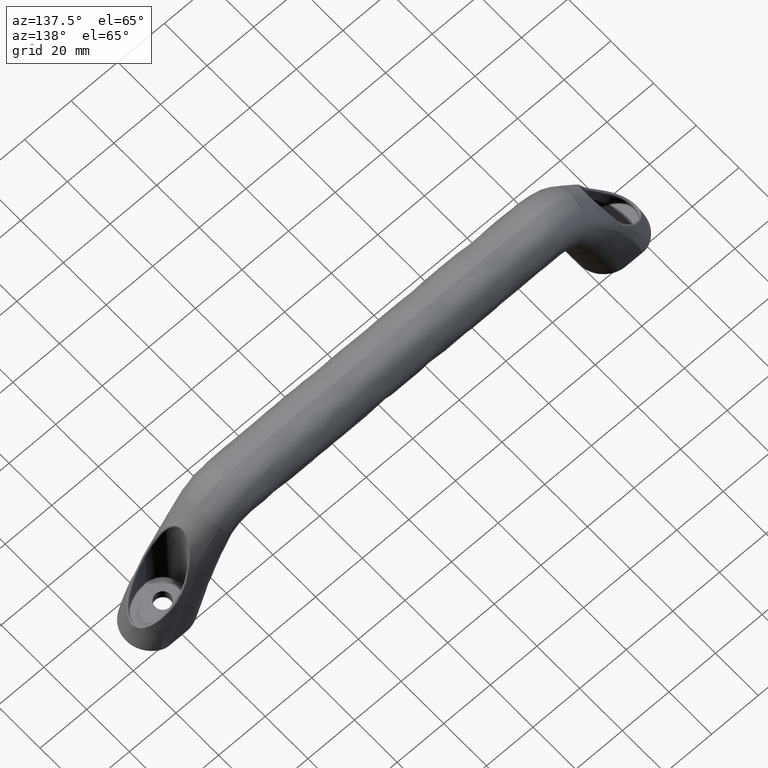
[diagram: clean part render]
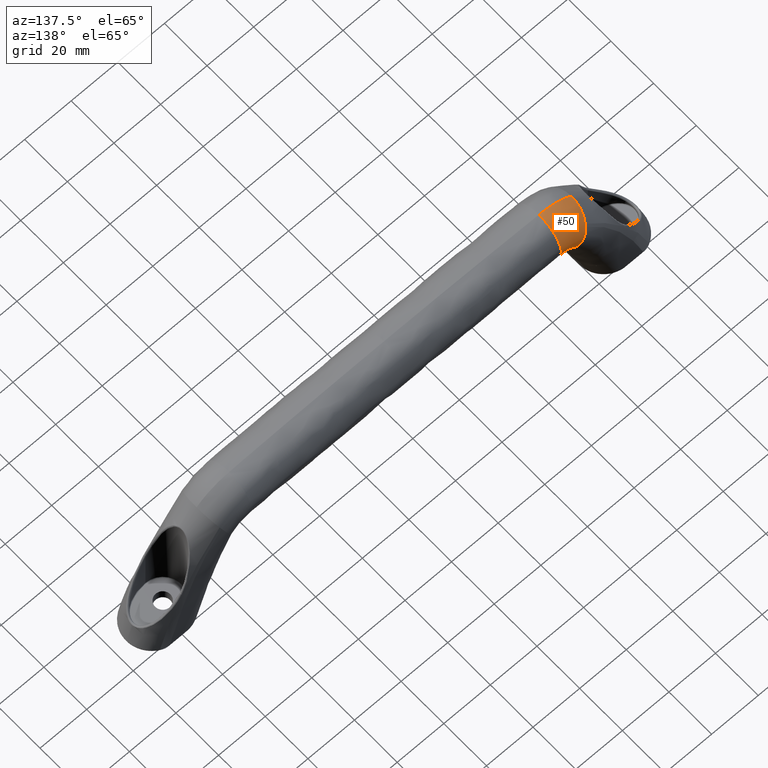
[diagram: same view with one face highlighted and labeled with its STEP entity id]
A machine part, auxiliary view. The second image highlights one B-rep face of the part: STEP entity #50.
In plain terms, the highlighted face is a freeform B-spline surface patch.
Its self-contained STEP definition (entity closure, byte-faithful):
#50=ADVANCED_FACE('',(#191),#190,.T.);
#190=( BOUNDED_SURFACE() B_SPLINE_SURFACE( 3,3,((#1755,#1756,#1757,#1758,#1759,#1760,#1761,#1762,#1763,#1764,#1765,#1766,#1767,#1768,#1769,#1770),(#1771,#1772,#1773,#1774,#1775,#1776,#1777,#1778,#1779,#1780,#1781,#1782,#1783,#1784,#1785,#1786),(#1787,#1788,#1789,#1790,#1791,#1792,#1793,#1794,#1795,#1796,#1797,#1798,#1799,#1800,#1801,#1802),(#1803,#1804,#1805,#1806,#1807,#1808,#1809,#1810,#1811,#1812,#1813,#1814,#1815,#1816,#1817,#1818),(#1819,#1820,#1821,#1822,#1823,#1824,#1825,#1826,#1827,#1828,#1829,#1830,#1831,#1832,#1833,#1834)), .UNSPECIFIED.,.F.,.F.,.F.) B_SPLINE_SURFACE_WITH_KNOTS((4,1,4),(4,1,1,1,1,1,1,1,1,1,1,1,1,4),(0.00000000000E+00,5.00000000000E-01,1.00000000000E+00),(0.00000000000E+00,9.84265294302E-02,1.99907659109E-01,3.01325530409E-01,3.99777060247E-01,4.99893280987E-01,5.99635137018E-01,6.49131936105E-01,6.74208810466E-01,6.99124304367E-01,7.48940443401E-01,8.00182141727E-01,9.01509610726E-01,1.00000000000E+00), .UNSPECIFIED. ) GEOMETRIC_REPRESENTATION_ITEM() RATIONAL_B_SPLINE_SURFACE(((1.00000000000E+00,1.00000000000E+00,1.00000000000E+00,1.00000000000E+00,1.00000000000E+00,1.00000000000E+00,1.00000000000E+00,1.00000000000E+00,1.00000000000E+00,1.00000000000E+00,1.00000000000E+00,1.00000000000E+00,1.00000000000E+00,1.00000000000E+00,1.00000000000E+00,1.00000000000E+00),(1.00000000000E+00,1.00000000000E+00,1.00000000000E+00,1.00000000000E+00,1.00000000000E+00,1.00000000000E+00,1.00000000000E+00,1.00000000000E+00,1.00000000000E+00,1.00000000000E+00,1.00000000000E+00,1.00000000000E+00,1.00000000000E+00,1.00000000000E+00,1.00000000000E+00,1.00000000000E+00),(1.00000000000E+00,1.00000000000E+00,1.00000000000E+00,1.00000000000E+00,1.00000000000E+00,1.00000000000E+00,1.00000000000E+00,1.00000000000E+00,1.00000000000E+00,1.00000000000E+00,1.00000000000E+00,1.00000000000E+00,1.00000000000E+00,1.00000000000E+00,1.00000000000E+00,1.00000000000E+00),(1.00000000000E+00,1.00000000000E+00,1.00000000000E+00,1.00000000000E+00,1.00000000000E+00,1.00000000000E+00,1.00000000000E+00,1.00000000000E+00,1.00000000000E+00,1.00000000000E+00,1.00000000000E+00,1.00000000000E+00,1.00000000000E+00,1.00000000000E+00,1.00000000000E+00,1.00000000000E+00),(1.00000000000E+00,1.00000000000E+00,1.00000000000E+00,1.00000000000E+00,1.00000000000E+00,1.00000000000E+00,1.00000000000E+00,1.00000000000E+00,1.00000000000E+00,1.00000000000E+00,1.00000000000E+00,1.00000000000E+00,1.00000000000E+00,1.00000000000E+00,1.00000000000E+00,1.00000000000E+00))) REPRESENTATION_ITEM('') SURFACE() );
#191=FACE_OUTER_BOUND('',#1835,.T.);
#1755=CARTESIAN_POINT('',(-1.61483175279E+02,3.19999780576E+01,5.89999394433E+01));
#1756=CARTESIAN_POINT('',(-1.61483175279E+02,3.30932367944E+01,5.89999394433E+01));
#1757=CARTESIAN_POINT('',(-1.61483175279E+02,3.52910740797E+01,5.93451684807E+01));
#1758=CARTESIAN_POINT('',(-1.61483175279E+02,3.83070252484E+01,6.08776876629E+01));
#1759=CARTESIAN_POINT('',(-1.61483175279E+02,4.06893599262E+01,6.32931860349E+01));
#1760=CARTESIAN_POINT('',(-1.61483175279E+02,4.21947465193E+01,6.63281107020E+01));
#1761=CARTESIAN_POINT('',(-1.61483175279E+02,4.26788023259E+01,6.96710846465E+01));
#1762=CARTESIAN_POINT('',(-1.61483175279E+02,4.21835576008E+01,7.24550440117E+01));
#1763=CARTESIAN_POINT('',(-1.61483175279E+02,4.13987253139E+01,7.42338356660E+01));
#1764=CARTESIAN_POINT('',(-1.61483175279E+02,4.08424861130E+01,7.51880233629E+01));
#1765=CARTESIAN_POINT('',(-1.61483175279E+02,4.02873957260E+01,7.61470359707E+01));
#1766=CARTESIAN_POINT('',(-1.61483175279E+02,3.94310898699E+01,7.72599607863E+01));
#1767=CARTESIAN_POINT('',(-1.61483175279E+02,3.77857975600E+01,7.87899220920E+01));
#1768=CARTESIAN_POINT('',(-1.61483175279E+02,3.52926025899E+01,8.01285405224E+01));
#1769=CARTESIAN_POINT('',(-1.61483175279E+02,3.30939396539E+01,8.04841122288E+01));
#1770=CARTESIAN_POINT('',(-1.61483175279E+02,3.19999780576E+01,8.04803542570E+01));
#1771=CARTESIAN_POINT('',(-1.62637045696E+02,3.19999780576E+01,5.90039507699E+01));
#1772=CARTESIAN_POINT('',(-1.62637045696E+02,3.30910846704E+01,5.90039507699E+01));
#1773=CARTESIAN_POINT('',(-1.62659326252E+02,3.52921052885E+01,5.93476552473E+01));
#1774=CARTESIAN_POINT('',(-1.62759474107E+02,3.83067453029E+01,6.08736240039E+01));
#1775=CARTESIAN_POINT('',(-1.62920272797E+02,4.06894324426E+01,6.32791869051E+01));
#1776=CARTESIAN_POINT('',(-1.63125733044E+02,4.21947269553E+01,6.63019020419E+01));
#1777=CARTESIAN_POINT('',(-1.63354923432E+02,4.26788076340E+01,6.96315332697E+01));
#1778=CARTESIAN_POINT('',(-1.63547465971E+02,4.21835571524E+01,7.24043904507E+01));
#1779=CARTESIAN_POINT('',(-1.63670998841E+02,4.13987250471E+01,7.41760788161E+01));
#1780=CARTESIAN_POINT('',(-1.63737372458E+02,4.08424866808E+01,7.51264552615E+01));
#1781=CARTESIAN_POINT('',(-1.63804152351E+02,4.02873926151E+01,7.60816292439E+01));
#1782=CARTESIAN_POINT('',(-1.63881750294E+02,3.94311153741E+01,7.71901402750E+01));
#1783=CARTESIAN_POINT('',(-1.63988600137E+02,3.77856615113E+01,7.87139628693E+01));
#1784=CARTESIAN_POINT('',(-1.64082265639E+02,3.52936675776E+01,8.00472083782E+01));
#1785=CARTESIAN_POINT('',(-1.64107152886E+02,3.30917662541E+01,8.04013334311E+01));
#1786=CARTESIAN_POINT('',(-1.64106898394E+02,3.19999780576E+01,8.03976062355E+01));
#1787=CARTESIAN_POINT('',(-1.64938514754E+02,3.19999780576E+01,5.82478185229E+01));
#1788=CARTESIAN_POINT('',(-1.64938514754E+02,3.30865609269E+01,5.82478185229E+01));
#1789=CARTESIAN_POINT('',(-1.65004967528E+02,3.52942728792E+01,5.85867785319E+01));
#1790=CARTESIAN_POINT('',(-1.65303317230E+02,3.83061568603E+01,6.00885497075E+01));
#1791=CARTESIAN_POINT('',(-1.65782098916E+02,4.06895848716E+01,6.24495161742E+01));
#1792=CARTESIAN_POINT('',(-1.66394082864E+02,4.21946858314E+01,6.54101399931E+01));
#1793=CARTESIAN_POINT('',(-1.67077139901E+02,4.26788187937E+01,6.86673572920E+01));
#1794=CARTESIAN_POINT('',(-1.67651265936E+02,4.21835562034E+01,7.13780514402E+01));
#1795=CARTESIAN_POINT('',(-1.68019718071E+02,4.13987244950E+01,7.31095673920E+01));
#1796=CARTESIAN_POINT('',(-1.68217709024E+02,4.08424878587E+01,7.40383011233E+01));
#1797=CARTESIAN_POINT('',(-1.68416921929E+02,4.02873861599E+01,7.49716800847E+01));
#1798=CARTESIAN_POINT('',(-1.68648462911E+02,3.94311682987E+01,7.60547281530E+01));
#1799=CARTESIAN_POINT('',(-1.68967277305E+02,3.77853791911E+01,7.75435568301E+01));
#1800=CARTESIAN_POINT('',(-1.69246784793E+02,3.52958775763E+01,7.88461016296E+01));
#1801=CARTESIAN_POINT('',(-1.69321068337E+02,3.30872561449E+01,7.91919953440E+01));
#1802=CARTESIAN_POINT('',(-1.69320305875E+02,3.19999780576E+01,7.91883848155E+01));
#1803=CARTESIAN_POINT('',(-1.66365727837E+02,3.19999780576E+01,5.62903854236E+01));
#1804=CARTESIAN_POINT('',(-1.66365727837E+02,3.30811431332E+01,5.62903854236E+01));
#1805=CARTESIAN_POINT('',(-1.66482221370E+02,3.52968688618E+01,5.66112120336E+01));
#1806=CARTESIAN_POINT('',(-1.66999179106E+02,3.83054521208E+01,5.80324308811E+01));
#1807=CARTESIAN_POINT('',(-1.67814954312E+02,4.06897674259E+01,6.02655048727E+01));
#1808=CARTESIAN_POINT('',(-1.68843007689E+02,4.21946365799E+01,6.30636939094E+01));
#1809=CARTESIAN_POINT('',(-1.69979372671E+02,4.26788321593E+01,6.61404202442E+01));
#1810=CARTESIAN_POINT('',(-1.70928598959E+02,4.21835550656E+01,6.86999816431E+01));
#1811=CARTESIAN_POINT('',(-1.71536086006E+02,4.13987238357E+01,7.03347184060E+01));
#1812=CARTESIAN_POINT('',(-1.71862171878E+02,4.08424892662E+01,7.12114974448E+01));
#1813=CARTESIAN_POINT('',(-1.72190046551E+02,4.02873784466E+01,7.20926244249E+01));
#1814=CARTESIAN_POINT('',(-1.72570773035E+02,3.94312315391E+01,7.31150567220E+01));
#1815=CARTESIAN_POINT('',(-1.73094497881E+02,3.77850418424E+01,7.45204137851E+01));
#1816=CARTESIAN_POINT('',(-1.73553108253E+02,3.52985183387E+01,7.57498680217E+01));
#1817=CARTESIAN_POINT('',(-1.73674941475E+02,3.30818669440E+01,7.60763558009E+01));
#1818=CARTESIAN_POINT('',(-1.73673676658E+02,3.19999780576E+01,7.60729471170E+01));
#1819=CARTESIAN_POINT('',(-1.66716699438E+02,3.19999780576E+01,5.51911725736E+01));
#1820=CARTESIAN_POINT('',(-1.66716699438E+02,3.30778596558E+01,5.51911725736E+01));
#1821=CARTESIAN_POINT('',(-1.66857318312E+02,3.52984421683E+01,5.54959634992E+01));
#1822=CARTESIAN_POINT('',(-1.67481544836E+02,3.83050250103E+01,5.68489723410E+01));
#1823=CARTESIAN_POINT('',(-1.68465426911E+02,4.06898780636E+01,5.89815333504E+01));
#1824=CARTESIAN_POINT('',(-1.69701614032E+02,4.21946067312E+01,6.16609646796E+01));
#1825=CARTESIAN_POINT('',(-1.71063275946E+02,4.26788402579E+01,6.46123621916E+01));
#1826=CARTESIAN_POINT('',(-1.72197239751E+02,4.21835543812E+01,6.70702248339E+01));
#1827=CARTESIAN_POINT('',(-1.72921778103E+02,4.13987234289E+01,6.86406592175E+01));
#1828=CARTESIAN_POINT('',(-1.73310438349E+02,4.08424901319E+01,6.94830789637E+01));
#1829=CARTESIAN_POINT('',(-1.73701063836E+02,4.02873737032E+01,7.03297583600E+01));
#1830=CARTESIAN_POINT('',(-1.74154381244E+02,3.94312704274E+01,7.13123222816E+01));
#1831=CARTESIAN_POINT('',(-1.74777564292E+02,3.77848343973E+01,7.26630693926E+01));
#1832=CARTESIAN_POINT('',(-1.75322822956E+02,3.53001422157E+01,7.38449156710E+01));
#1833=CARTESIAN_POINT('',(-1.75467622533E+02,3.30785529770E+01,7.41587682545E+01));
#1834=CARTESIAN_POINT('',(-1.75466113363E+02,3.19999780576E+01,7.41554971344E+01));
#1835=EDGE_LOOP('',(#4602,#4603,#4604,#4605,#4606,#4607));
#4602=ORIENTED_EDGE('',*,*,#4813,.T.);
#4603=ORIENTED_EDGE('',*,*,#4814,.T.);
#4604=ORIENTED_EDGE('',*,*,#4815,.T.);
#4605=ORIENTED_EDGE('',*,*,#4784,.F.);
#4606=ORIENTED_EDGE('',*,*,#4816,.T.);
#4607=ORIENTED_EDGE('',*,*,#4817,.T.);
#4784=EDGE_CURVE('',#4924,#4925,#4926,.T.);
#4813=EDGE_CURVE('',#5118,#5119,#5120,.T.);
#4814=EDGE_CURVE('',#5119,#5126,#5127,.T.);
#4815=EDGE_CURVE('',#5126,#4925,#5133,.T.);
#4816=EDGE_CURVE('',#4924,#5139,#5140,.T.);
#4817=EDGE_CURVE('',#5139,#5118,#5146,.T.);
#4924=VERTEX_POINT('',#5738);
#4925=VERTEX_POINT('',#5739);
#4926=CIRCLE('',#5743,4.82991759925E+01);
#5118=VERTEX_POINT('',#6341);
#5119=VERTEX_POINT('',#6342);
#5120=(BOUNDED_CURVE() B_SPLINE_CURVE(2,(#6343,#6344,#6345,#6346,#6347,#6348,#6349,#6350,#6351),.UNSPECIFIED.,.F.,.F.) B_SPLINE_CURVE_WITH_KNOTS((3,2,2,2,3),(-3.65880807057E+01,-2.51853849239E+01,-2.40959586046E+01,-1.20479793023E+01,0.00000000000E+00),.UNSPECIFIED.) CURVE() GEOMETRIC_REPRESENTATION_ITEM() RATIONAL_B_SPLINE_CURVE((1.00000000000E+00,8.68727517694E-01,1.00000000000E+00,9.99940662796E-01,1.00000000000E+00,8.67388181384E-01,1.00000000000E+00,8.67388181384E-01,1.00000000000E+00)) REPRESENTATION_ITEM('') );
#5126=VERTEX_POINT('',#6352);
#5127=(BOUNDED_CURVE() B_SPLINE_CURVE(3,(#6353,#6354,#6355,#6356,#6357,#6358,#6359,#6360,#6361,#6362,#6363,#6364,#6365,#6366,#6367,#6368),.UNSPECIFIED.,.F.,.F.) B_SPLINE_CURVE_WITH_KNOTS((4,2,2,2,2,2,2,4),(0.00000000000E+00,2.16684558461E-01,4.33369116922E-01,8.66738233846E-01,1.73347646769E+00,3.46695293537E+00,5.20042940306E+00,6.93390587073E+00),.UNSPECIFIED.) CURVE() GEOMETRIC_REPRESENTATION_ITEM() RATIONAL_B_SPLINE_CURVE((1.00000000000E+00,1.00000000000E+00,1.00000000000E+00,1.00000000000E+00,1.00000000000E+00,1.00000000000E+00,1.00000000000E+00,1.00000000000E+00,1.00000000000E+00,1.00000000000E+00,1.00000000000E+00,1.00000000000E+00,1.00000000000E+00,1.00000000000E+00,1.00000000000E+00,1.00000000000E+00)) REPRESENTATION_ITEM('') );
#5133=(BOUNDED_CURVE() B_SPLINE_CURVE(2,(#6369,#6370,#6371,#6372,#6373),.UNSPECIFIED.,.F.,.F.) B_SPLINE_CURVE_WITH_KNOTS((3,2,3),(-2.37224876083E+01,-1.17982073668E+01,0.00000000000E+00),.UNSPECIFIED.) CURVE() GEOMETRIC_REPRESENTATION_ITEM() RATIONAL_B_SPLINE_CURVE((1.00000000000E+00,8.67388181384E-01,1.00000000000E+00,8.67388181384E-01,1.00000000000E+00)) REPRESENTATION_ITEM('') );
#5139=VERTEX_POINT('',#6374);
#5140=(BOUNDED_CURVE() B_SPLINE_CURVE(2,(#6375,#6376,#6377),.UNSPECIFIED.,.F.,.F.) B_SPLINE_CURVE_WITH_KNOTS((3,3),(-1.12863690606E+01,0.00000000000E+00),.UNSPECIFIED.) CURVE() GEOMETRIC_REPRESENTATION_ITEM() RATIONAL_B_SPLINE_CURVE((1.00000000000E+00,8.68727517694E-01,1.00000000000E+00)) REPRESENTATION_ITEM('') );
#5146=(BOUNDED_CURVE() B_SPLINE_CURVE(3,(#6378,#6379,#6380,#6381,#6382,#6383,#6384,#6385,#6386,#6387,#6388,#6389,#6390,#6391,#6392,#6393),.UNSPECIFIED.,.F.,.F.) B_SPLINE_CURVE_WITH_KNOTS((4,2,2,2,2,2,2,4),(0.00000000000E+00,3.93744709031E+00,7.87489418064E+00,1.18123412710E+01,1.37810648161E+01,1.47654265887E+01,1.52576074750E+01,1.57497883613E+01),.UNSPECIFIED.) CURVE() GEOMETRIC_REPRESENTATION_ITEM() RATIONAL_B_SPLINE_CURVE((1.00000000000E+00,1.00000000000E+00,1.00000000000E+00,1.00000000000E+00,1.00000000000E+00,1.00000000000E+00,1.00000000000E+00,1.00000000000E+00,1.00000000000E+00,1.00000000000E+00,1.00000000000E+00,1.00000000000E+00,1.00000000000E+00,1.00000000000E+00,1.00000000000E+00,1.00000000000E+00)) REPRESENTATION_ITEM('') );
#5738=CARTESIAN_POINT('',(-1.73464486374E+02,4.06054246432E+01,6.98544014308E+01));
#5739=CARTESIAN_POINT('',(-1.73080688355E+02,4.11500731613E+01,6.90212025126E+01));
#5740=CARTESIAN_POINT('',(-1.62956918083E+02,-6.50488983669E-01,4.70431980218E+01));
#5741=DIRECTION('',(-9.08272419320E-01,2.96718191684E-09,-4.18379268491E-01));
#5742=DIRECTION('',(2.17551709227E-01,-8.54174274802E-01,-4.72289701433E-01));
#5743=AXIS2_PLACEMENT_3D('',#5740,#5741,#5742);
#6341=CARTESIAN_POINT('',(-1.61483175279E+02,3.19999780576E+01,8.04803542570E+01));
#6342=CARTESIAN_POINT('',(-1.61483175279E+02,3.19999780576E+01,5.89999394433E+01));
#6343=CARTESIAN_POINT('',(-1.61483175279E+02,3.19999780576E+01,8.04803542570E+01));
#6344=CARTESIAN_POINT('',(-1.61483175279E+02,3.77013091289E+01,8.04999394433E+01));
#6345=CARTESIAN_POINT('',(-1.61483175279E+02,4.06054246432E+01,7.55936894433E+01));
#6346=CARTESIAN_POINT('',(-1.61483175279E+02,4.08828879090E+01,7.51249394433E+01));
#6347=CARTESIAN_POINT('',(-1.61483175279E+02,4.11500731613E+01,7.46502558990E+01));
#6348=CARTESIAN_POINT('',(-1.61483175279E+02,4.41048782117E+01,6.94007246408E+01));
#6349=CARTESIAN_POINT('',(-1.61483175279E+02,4.10644229602E+01,6.42003320420E+01));
#6350=CARTESIAN_POINT('',(-1.61483175279E+02,3.80239677088E+01,5.89999394433E+01));
#6351=CARTESIAN_POINT('',(-1.61483175279E+02,3.19999780576E+01,5.89999394433E+01));
#6352=CARTESIAN_POINT('',(-1.66713986118E+02,3.19999780576E+01,5.51995329124E+01));
#6353=CARTESIAN_POINT('',(-1.61483175279E+02,3.19999780576E+01,5.89999394433E+01));
#6354=CARTESIAN_POINT('',(-1.61555152086E+02,3.19999780576E+01,5.89999397969E+01));
#6355=CARTESIAN_POINT('',(-1.61627177990E+02,3.19999780576E+01,5.89985253487E+01));
#6356=CARTESIAN_POINT('',(-1.61771036125E+02,3.19999780576E+01,5.89928730178E+01));
#6357=CARTESIAN_POINT('',(-1.61842923035E+02,3.19999780576E+01,5.89886334552E+01));
#6358=CARTESIAN_POINT('',(-1.62058241457E+02,3.19999780576E+01,5.89716899106E+01));
#6359=CARTESIAN_POINT('',(-1.62201353600E+02,3.19999780576E+01,5.89547464914E+01));
#6360=CARTESIAN_POINT('',(-1.62627993819E+02,3.19999780576E+01,5.88871959295E+01));
#6361=CARTESIAN_POINT('',(-1.62908867823E+02,3.19999780576E+01,5.88197239469E+01));
#6362=CARTESIAN_POINT('',(-1.63730620277E+02,3.19999780576E+01,5.85529122144E+01));
#6363=CARTESIAN_POINT('',(-1.64250056308E+02,3.19999780576E+01,5.82881687759E+01));
#6364=CARTESIAN_POINT('',(-1.65182045662E+02,3.19999780576E+01,5.76110647493E+01));
#6365=CARTESIAN_POINT('',(-1.65594310455E+02,3.19999780576E+01,5.71988014798E+01));
#6366=CARTESIAN_POINT('',(-1.66271384671E+02,3.19999780576E+01,5.62668322802E+01));
#6367=CARTESIAN_POINT('',(-1.66536176856E+02,3.19999780576E+01,5.57474026047E+01));
#6368=CARTESIAN_POINT('',(-1.66713986118E+02,3.19999780576E+01,5.51995329124E+01));
#6369=CARTESIAN_POINT('',(-1.66713986118E+02,3.19999780576E+01,5.51995329124E+01));
#6370=CARTESIAN_POINT('',(-1.66713986118E+02,3.80239677088E+01,5.51995329124E+01));
#6371=CARTESIAN_POINT('',(-1.68829556834E+02,4.10644229602E+01,5.97922904131E+01));
#6372=CARTESIAN_POINT('',(-1.70945127550E+02,4.41048782117E+01,6.43850479139E+01));
#6373=CARTESIAN_POINT('',(-1.73080688355E+02,4.11500731613E+01,6.90212025126E+01));
#6374=CARTESIAN_POINT('',(-1.75452429550E+02,3.19999780576E+01,7.41700883815E+01));
#6375=CARTESIAN_POINT('',(-1.73464486374E+02,4.06054246432E+01,6.98544014308E+01));
#6376=CARTESIAN_POINT('',(-1.75460396996E+02,3.77013091289E+01,7.41873851547E+01));
#6377=CARTESIAN_POINT('',(-1.75452429550E+02,3.19999780576E+01,7.41700883815E+01));
#6378=CARTESIAN_POINT('',(-1.75452429550E+02,3.19999780576E+01,7.41700883815E+01));
#6379=CARTESIAN_POINT('',(-1.74555701978E+02,3.19999780576E+01,7.51262819347E+01));
#6380=CARTESIAN_POINT('',(-1.73564704052E+02,3.19999780576E+01,7.59937701420E+01));
#6381=CARTESIAN_POINT('',(-1.71432157005E+02,3.19999780576E+01,7.75187466248E+01));
#6382=CARTESIAN_POINT('',(-1.70290742244E+02,3.19999780576E+01,7.81760140844E+01));
#6383=CARTESIAN_POINT('',(-1.67901374844E+02,3.19999780576E+01,7.92549568313E+01));
#6384=CARTESIAN_POINT('',(-1.66653526132E+02,3.19999780576E+01,7.96766257348E+01));
#6385=CARTESIAN_POINT('',(-1.64737958216E+02,3.19999780576E+01,8.01200479139E+01));
#6386=CARTESIAN_POINT('',(-1.64092154860E+02,3.19999780576E+01,8.02365028580E+01));
#6387=CARTESIAN_POINT('',(-1.63117259577E+02,3.19999780576E+01,8.03631705613E+01));
#6388=CARTESIAN_POINT('',(-1.62791227797E+02,3.19999780576E+01,8.03974127516E+01));
#6389=CARTESIAN_POINT('',(-1.62301260214E+02,3.19999780576E+01,8.04367282361E+01));
#6390=CARTESIAN_POINT('',(-1.62137762572E+02,3.19999780576E+01,8.04478114056E+01));
#6391=CARTESIAN_POINT('',(-1.61810545757E+02,3.19999780576E+01,8.04660379865E+01));
#6392=CARTESIAN_POINT('',(-1.61646887963E+02,3.19999780576E+01,8.04725978226E+01));
#6393=CARTESIAN_POINT('',(-1.61483175279E+02,3.19999780576E+01,8.04803542570E+01));